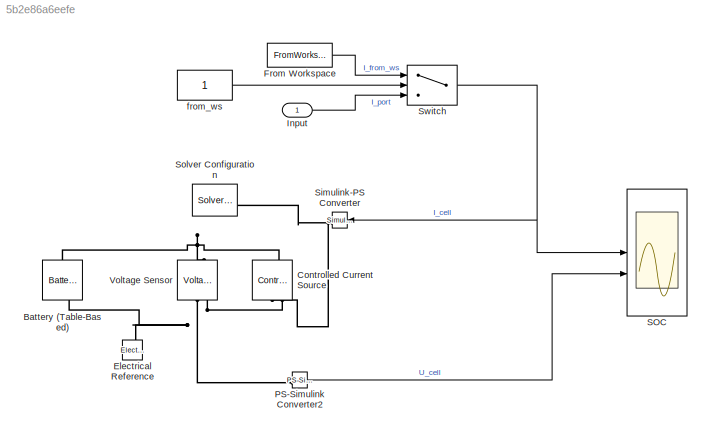
MODEL slx_5b2e86a6eefe
KIND model
CONFIG AbsTol = auto
CONFIG EnableMultiTasking = off
CONFIG FixedStep = auto
CONFIG InitFcn = % create dummy variables fro "From Workspace" block\n% in order to evade error\nif exist('t','var') ~= 1\n    t = [0;1];\nend\nif exist('I','var') ~= 1\n    I = [-1;-1];\nend
CONFIG MaxStep = auto
CONFIG MinStep = auto
CONFIG PreLoadFcn = % create dummy variables fro "From Workspace" block\n% in order to evade error\nif exist('t','var') ~= 1\n    t = [0;1];\nend\nif exist('I','var') ~= 1\n    I = [-1;-1];\nend
CONFIG RelTol = 1e-3
CONFIG SampleTimeConstraint = Unconstrained
CONFIG SolverName = VariableStepAuto
CONFIG StartTime = 0.0
CONFIG StopTime = 130.00
WORKSPACE source: MATLAB code (in-file)
WORKSPACE R0 = 0.03
WORKSPACE R1 = 0.02
WORKSPACE tau1 = 30
WORKSPACE R2 = 0.005
WORKSPACE tau2 = 1.0  (= 1)
WORKSPACE AH = 3.5
WORKSPACE initialSOC = 0.5
WORKSPACE code: SOC_vec = [0.4; 0.6];
WORKSPACE code: OCV_vec = [3.4; 3.6];
WORKSPACE unit_vec = ones(2,1)
BLOCK [Reference] Battery (Table-Based)  REF=batteryecm_lib/Battery
(Table-Based)
  NameLocation = left
  SourceBlock = batteryecm_lib/Battery\n(Table-Based)
  SourceType = Battery\n(Table-Based)
BLOCK [Reference] Controlled Current Source  REF=fl_lib/Electrical/Electrical Sources/Controlled Current
Source
  NameLocation = right
  SourceBlock = fl_lib/Electrical/Electrical Sources/Controlled Current\nSource
  SourceType = Controlled Current\nSource
BLOCK [Reference] Electrical Reference  REF=fl_lib/Electrical/Electrical Elements/Electrical Reference
  NameLocation = right
  SourceBlock = fl_lib/Electrical/Electrical Elements/Electrical Reference
  SourceType = Electrical Reference
BLOCK [FromWorkspace] From Workspace
  VariableName = [t, I]
BLOCK [Inport] Input
BLOCK [Reference] PS-Simulink Converter2  REF=nesl_utility/PS-Simulink
Converter
  SourceBlock = nesl_utility/PS-Simulink\nConverter
  SourceType = PS-Simulink\nConverter
BLOCK [Scope] SOC
  Floating = off
  NumInputPorts = 2
  ScopeSpecificationString = Simulink.scopes.TimeScopeBlockCfg('CurrentConfiguration', extmgr.ConfigurationSet(extmgr.Configuration('Core','General UI',true),extmgr.Configuration('Core','Source UI',true),extmgr.Configuration('Sources','WiredSimulink',true),extmgr.Configuration('Visuals','Time Domain',true,'SerializedDisplays',{struct('MinYLimReal','-2.02601','MaxYLimReal','0.22511','YLabelReal','','MinYLimMag','0.00000','MaxY...<+2012ch>
BLOCK [Reference] Simulink-PS Converter  REF=nesl_utility/Simulink-PS
Converter
  NameLocation = top
  SourceBlock = nesl_utility/Simulink-PS\nConverter
  SourceType = Simulink-PS\nConverter
BLOCK [Reference] Solver Configuration  REF=nesl_utility/Solver
Configuration
  SourceBlock = nesl_utility/Solver\nConfiguration
  SourceType = Solver\nConfiguration
BLOCK [Switch] Switch
  Criteria = u2 > Threshold
  InputSameDT = off
  SaturateOnIntegerOverflow = off
BLOCK [Reference] Voltage Sensor  REF=fl_lib/Electrical/Electrical Sensors/Voltage Sensor
  NameLocation = right
  SourceBlock = fl_lib/Electrical/Electrical Sensors/Voltage Sensor
  SourceType = Voltage Sensor
BLOCK [Constant] from_ws
LINE From Workspace:1 -> Switch:1
LINE Input:1 -> Switch:3
LINE PS-Simulink Converter2:1 -> SOC:2
NET Switch:1 -> SOC:1, Simulink-PS Converter:1
LINE from_ws:1 -> Switch:2
PNET net1: Battery (Table-Based):LConn1 -- Controlled Current Source:LConn1 -- Voltage Sensor:LConn1
PNET net2: Battery (Table-Based):RConn1 -- Controlled Current Source:RConn2 -- Electrical Reference:LConn1 -- Voltage Sensor:RConn2
PNET net3: Controlled Current Source:RConn1 -- Simulink-PS Converter:RConn1 -- Solver Configuration:RConn1
PLINE PS-Simulink Converter2:LConn1 -- Voltage Sensor:RConn1
note: NET lines group one-source signal fan-out (src -> all destinations, sorted); 1:1 wires keep LINE; PNET lines group multi-terminal physical nets as a canonical sorted terminal list (undirected conserving connections); 2-terminal nets keep the pairwise PLINE form
